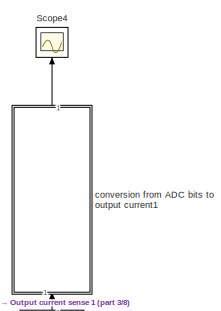
[diagram: root canvas - part 1/8, top left region]
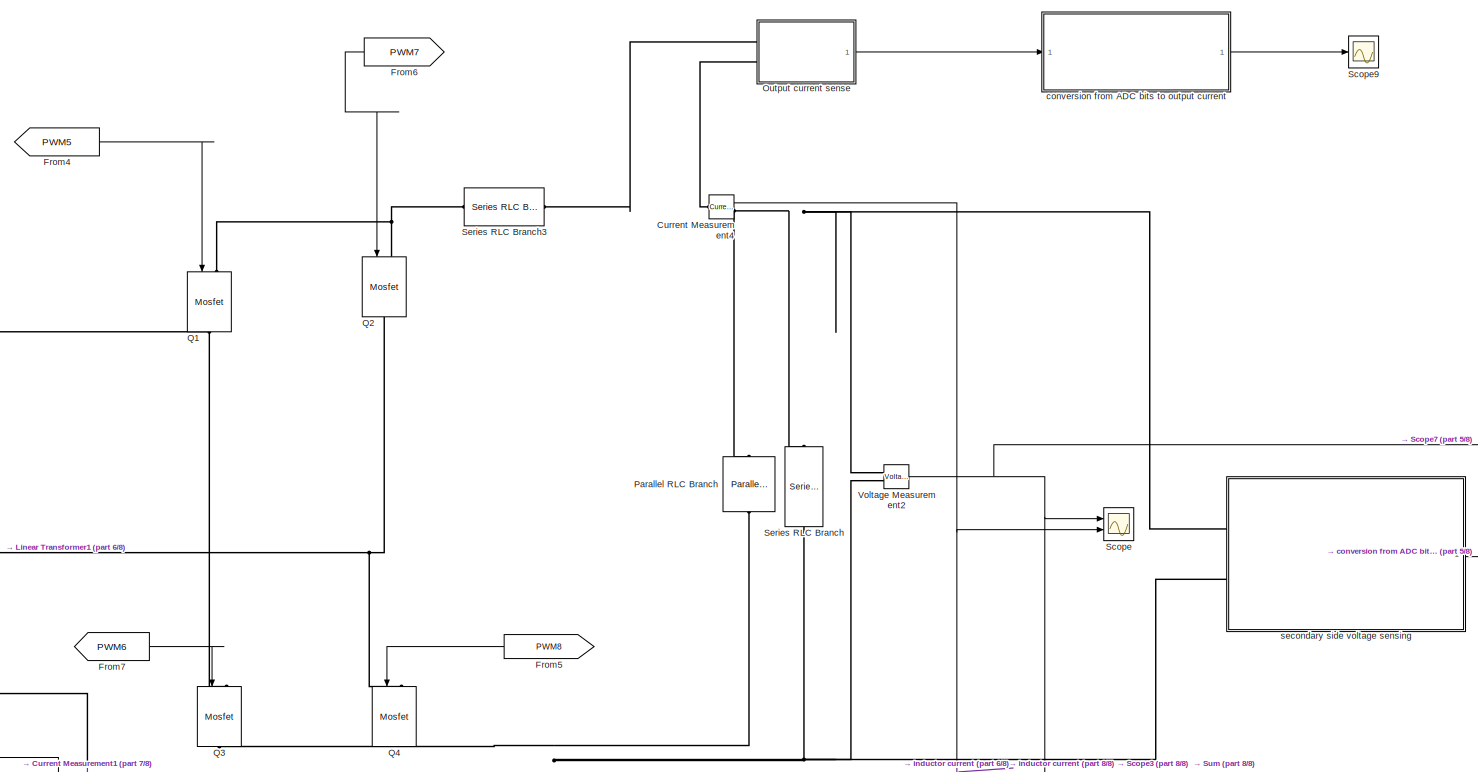
[diagram: root canvas - part 2/8, middle right region]
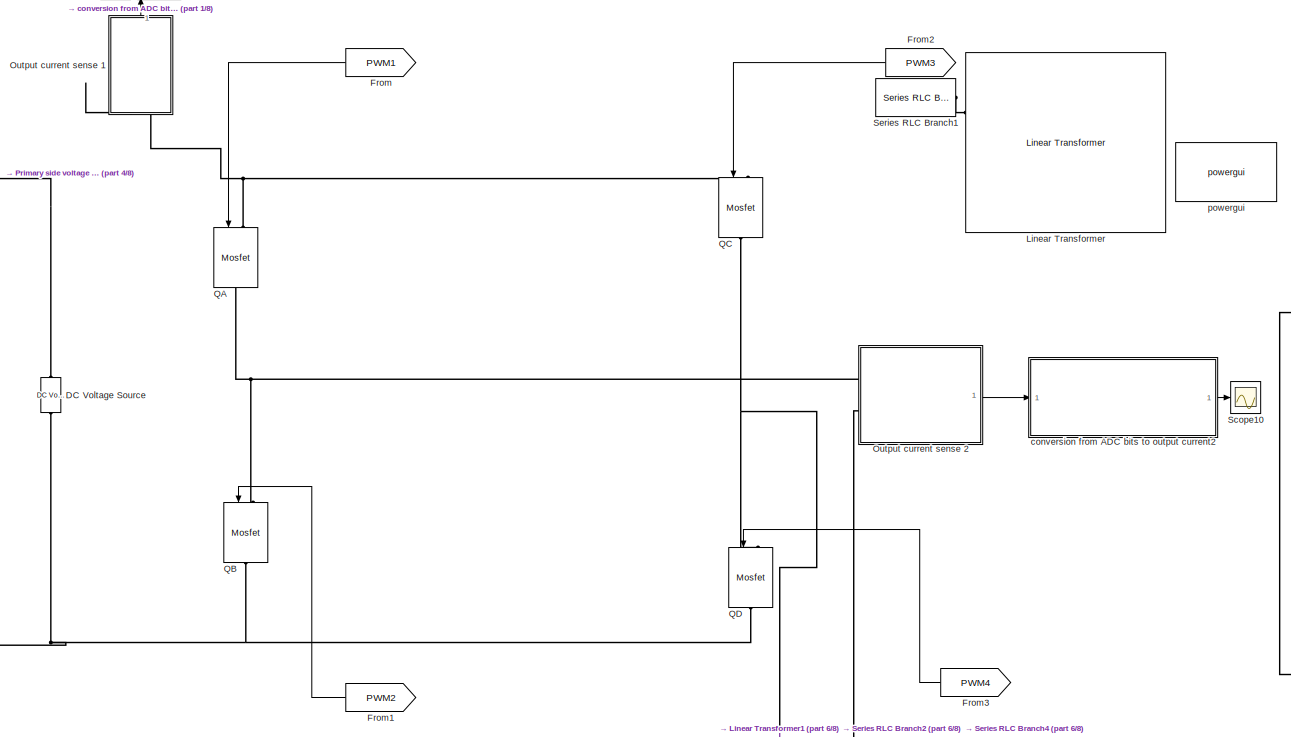
[diagram: root canvas - part 3/8, middle left region]
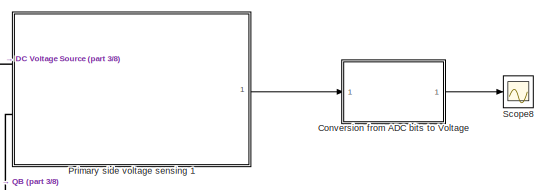
[diagram: root canvas - part 4/8, middle left region]
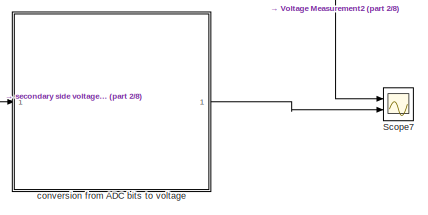
[diagram: root canvas - part 5/8, middle right region]
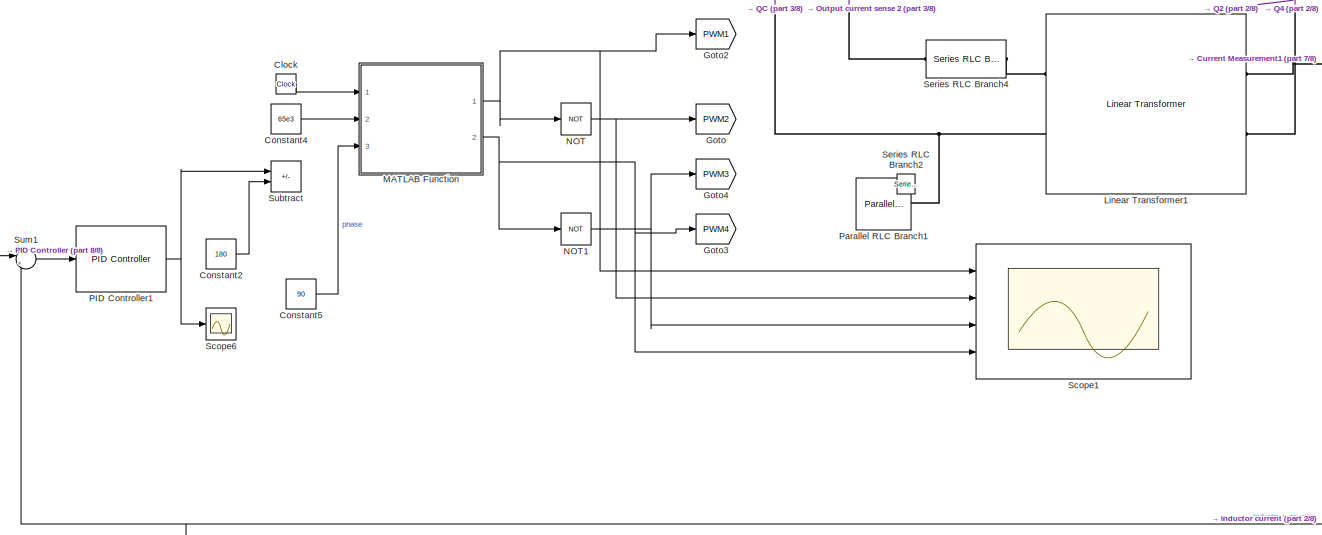
[diagram: root canvas - part 6/8, bottom left region]
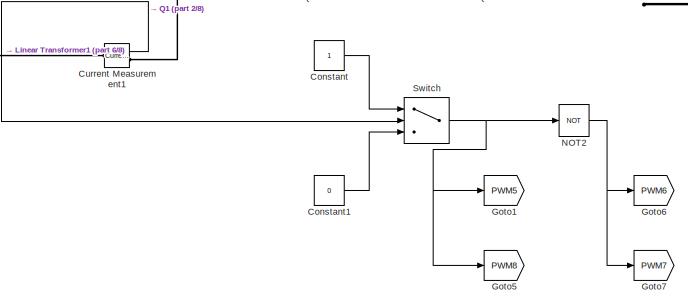
[diagram: root canvas - part 7/8, central region]
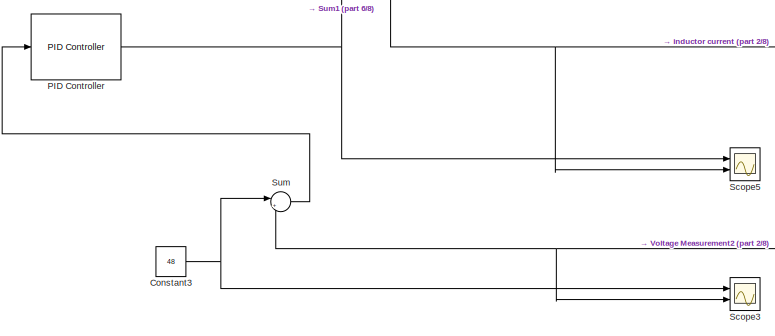
[diagram: root canvas - part 8/8, bottom left region]
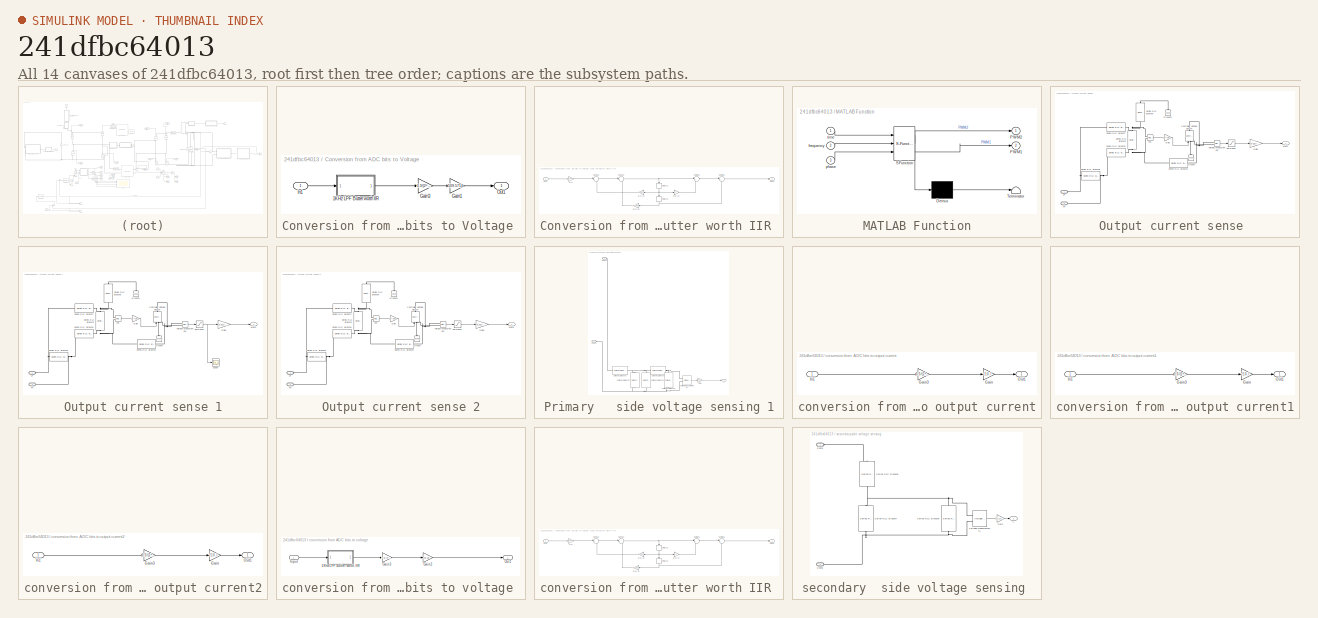
[diagram: thumbnail index - all 14 canvases of the model, root first then tree order]
MODEL slx_241dfbc64013
KIND model
CONFIG AbsTol = auto
CONFIG EnableMultiTasking = off
CONFIG FixedStep = 1.0000e-8
CONFIG MaxStep = auto
CONFIG MinStep = auto
CONFIG RelTol = 1e-3
CONFIG SampleTimeConstraint = Unconstrained
CONFIG SolverName = ode23t
CONFIG StartTime = 0.0
CONFIG StopTime = 0.5
BLOCK [Clock] Clock
BLOCK [Constant] Constant
BLOCK [Constant] Constant1
  Value = 0
BLOCK [Constant] Constant2
  Value = 180
BLOCK [Constant] Constant3
  Value = 48
BLOCK [Constant] Constant4
  Value = 65e3
BLOCK [Constant] Constant5
  SampleTime = 1e-8
  Value = 90
BLOCK [SubSystem] Conversion from ADC bits to Voltage 
  Ports = [1, 1]
  RequestExecContextInheritance = off
BLOCK [SubSystem] Conversion from ADC bits to Voltage /1KHz LPF Butter worth IIR 
  ErrorFcn = dspFilterRealizedInBasicElemsAlgLoopErrFcnCallback
  Ports = [1, 1]
  RequestExecContextInheritance = off
  Tag = FilterWizardSubSystem
  UserDataPersistent = on
BLOCK [Delay] Conversion from ADC bits to Voltage /1KHz LPF Butter worth IIR /Delay11
  DelayLength = 1
  InitialCondition = 0
  InputPortMap = u0
  NameLocation = right
  Ports = [1, 1]
BLOCK [Delay] Conversion from ADC bits to Voltage /1KHz LPF Butter worth IIR /Delay21
  DelayLength = 1
  InitialCondition = 0
  InputPortMap = u0
  NameLocation = right
  Ports = [1, 1]
BLOCK [Inport] Conversion from ADC bits to Voltage /1KHz LPF Butter worth IIR /Input
BLOCK [Outport] Conversion from ADC bits to Voltage /1KHz LPF Butter worth IIR /Output
BLOCK [Sum] Conversion from ADC bits to Voltage /1KHz LPF Butter worth IIR /SumA21
  Inputs = |+-
  OutDataTypeStr = Inherit: Same as first input
  Ports = [2, 1]
  RndMeth = Nearest
  SaturateOnIntegerOverflow = on
BLOCK [Sum] Conversion from ADC bits to Voltage /1KHz LPF Butter worth IIR /SumA31
  Inputs = |+-
  OutDataTypeStr = Inherit: Same as first input
  Ports = [2, 1]
  RndMeth = Nearest
  SaturateOnIntegerOverflow = on
BLOCK [Sum] Conversion from ADC bits to Voltage /1KHz LPF Butter worth IIR /SumB21
  Inputs = |++
  OutDataTypeStr = Inherit: Same as first input
  Ports = [2, 1]
  RndMeth = Nearest
  SaturateOnIntegerOverflow = on
BLOCK [Sum] Conversion from ADC bits to Voltage /1KHz LPF Butter worth IIR /SumB31
  Inputs = |++
  OutDataTypeStr = Inherit: Same as first input
  Ports = [2, 1]
  RndMeth = Nearest
  SaturateOnIntegerOverflow = on
BLOCK [Gain] Conversion from ADC bits to Voltage /1KHz LPF Butter worth IIR /a(2)(1)
  Gain = -1.14298050253990113
  OutDataTypeStr = Inherit: Same as input
  ParamDataTypeStr = double
  RndMeth = Nearest
  SaturateOnIntegerOverflow = on
BLOCK [Gain] Conversion from ADC bits to Voltage /1KHz LPF Butter worth IIR /a(3)(1)
  Gain = 0.412801598096188771
  OutDataTypeStr = Inherit: Same as input
  ParamDataTypeStr = double
  RndMeth = Nearest
  SaturateOnIntegerOverflow = on
BLOCK [Gain] Conversion from ADC bits to Voltage /1KHz LPF Butter worth IIR /b(2)(1)
  Gain = 2
  OutDataTypeStr = Inherit: Same as input
  ParamDataTypeStr = double
  RndMeth = Nearest
  SaturateOnIntegerOverflow = on
BLOCK [Gain] Conversion from ADC bits to Voltage /1KHz LPF Butter worth IIR /s(1)
  Gain = 0.0674552738890718956
  OutDataTypeStr = Inherit: Same as input
  ParamDataTypeStr = double
  RndMeth = Nearest
  SaturateOnIntegerOverflow = on
BLOCK [Gain] Conversion from ADC bits to Voltage /Gain1
  Gain = 509.5714
BLOCK [Gain] Conversion from ADC bits to Voltage /Gain3
  Gain = 3.3/(2^12)
BLOCK [Inport] Conversion from ADC bits to Voltage /In1
BLOCK [Outport] Conversion from ADC bits to Voltage /Out1
BLOCK [Reference] Current Measurement1  REF=spsCurrentMeasurementLib/Current Measurement
  Ports = [0, 1, 0, 0, 0, 1, 1]
  SourceBlock = spsCurrentMeasurementLib/Current Measurement
  SourceProductBaseCode = PS
  SourceType = Current Measurement
  UserDataPersistent = on
BLOCK [Reference] Current Measurement4  REF=spsCurrentMeasurementLib/Current Measurement
  Ports = [0, 1, 0, 0, 0, 1, 1]
  SourceBlock = spsCurrentMeasurementLib/Current Measurement
  SourceProductBaseCode = PS
  SourceType = Current Measurement
  UserDataPersistent = on
BLOCK [Reference] DC Voltage Source  REF=spsDCVoltageSourceLib/DC Voltage Source
  Ports = [0, 0, 0, 0, 0, 1, 1]
  SourceBlock = spsDCVoltageSourceLib/DC Voltage Source
  SourceProductBaseCode = PS
  SourceType = DC Voltage Source
BLOCK [From] From
  GotoTag = PWM1
  NameLocation = top
BLOCK [From] From1
  GotoTag = PWM2
  NameLocation = top
BLOCK [From] From2
  GotoTag = PWM3
  NameLocation = top
BLOCK [From] From3
  GotoTag = PWM4
  NameLocation = top
BLOCK [From] From4
  GotoTag = PWM5
BLOCK [From] From5
  GotoTag = PWM8
  NameLocation = top
BLOCK [From] From6
  GotoTag = PWM7
  NameLocation = top
BLOCK [From] From7
  GotoTag = PWM6
BLOCK [Goto] Goto
  GotoTag = PWM2
BLOCK [Goto] Goto1
  GotoTag = PWM5
BLOCK [Goto] Goto2
  GotoTag = PWM1
BLOCK [Goto] Goto3
  GotoTag = PWM4
BLOCK [Goto] Goto4
  GotoTag = PWM3
BLOCK [Goto] Goto5
  GotoTag = PWM8
BLOCK [Goto] Goto6
  GotoTag = PWM6
BLOCK [Goto] Goto7
  GotoTag = PWM7
BLOCK [Reference] Linear Transformer  REF=spsLinearTransformerLib/Linear Transformer
  Commented = on
  Ports = [0, 0, 0, 0, 0, 2, 2]
  SourceBlock = spsLinearTransformerLib/Linear Transformer
  SourceProductBaseCode = PS
  SourceType = Linear Transformer
BLOCK [Reference] Linear Transformer1  REF=spsLinearTransformerLib/Linear Transformer
  Ports = [0, 0, 0, 0, 0, 2, 2]
  SourceBlock = spsLinearTransformerLib/Linear Transformer
  SourceProductBaseCode = PS
  SourceType = Linear Transformer
BLOCK [SubSystem] MATLAB Function
  ErrorFcn = Stateflow.Translate.translate
  PermitHierarchicalResolution = ExplicitOnly
  Ports = [3, 2]
  RequestExecContextInheritance = off
  SFBlockType = MATLAB Function
  TreatAsAtomicUnit = on
BLOCK [Demux] MATLAB Function/ Demux 
  Outputs = 1
  Ports = [1, 1]
BLOCK [S-Function] MATLAB Function/ SFunction 
  EnableBusSupport = on
  FunctionName = sf_sfun
  PortCounts = [3 3]
  Ports = [3, 3]
  SFcnIsStateOwnerBlock = off
  SFunctionDeploymentMode = off
  Tag = Stateflow S-Function 2
BLOCK [Terminator] MATLAB Function/ Terminator 
BLOCK [Outport] MATLAB Function/PWM1
  Port = 2
BLOCK [Outport] MATLAB Function/PWM2
BLOCK [Inport] MATLAB Function/frequency
  Port = 2
BLOCK [Inport] MATLAB Function/phase
  Port = 3
BLOCK [Inport] MATLAB Function/time
BLOCK [Logic] NOT
  AllPortsSameDT = off
  IconShape = distinctive
  Operator = NOT
  OutDataTypeStr = boolean
  Ports = [1, 1]
BLOCK [Logic] NOT1
  AllPortsSameDT = off
  IconShape = distinctive
  Operator = NOT
  OutDataTypeStr = boolean
  Ports = [1, 1]
BLOCK [Logic] NOT2
  AllPortsSameDT = off
  IconShape = distinctive
  Operator = NOT
  OutDataTypeStr = boolean
  Ports = [1, 1]
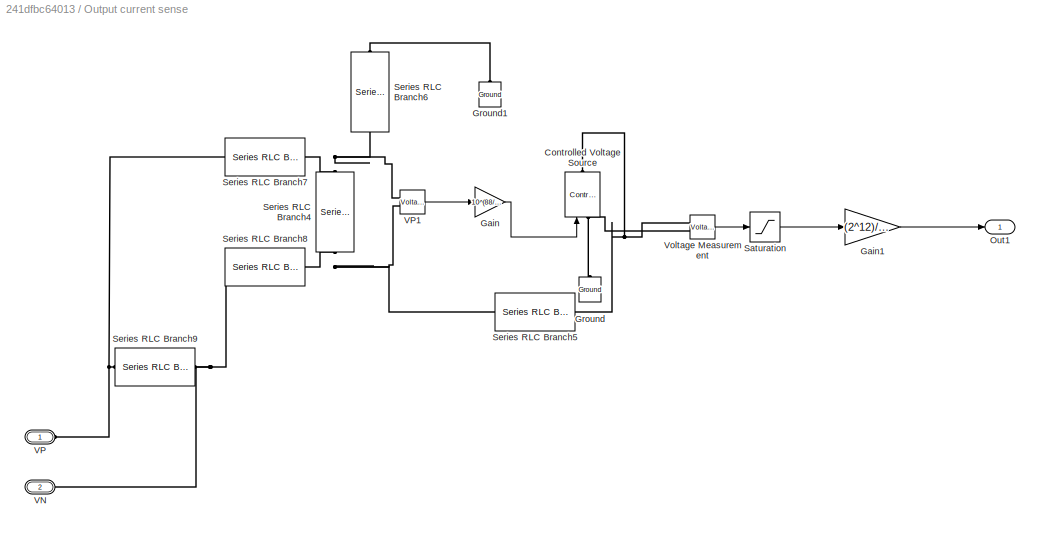
BLOCK [SubSystem] Output current sense 
  Ports = [0, 1, 0, 0, 0, 2]
  RequestExecContextInheritance = off
BLOCK [Reference] Output current sense /Controlled Voltage Source  REF=spsControlledVoltageSourceLib/Controlled Voltage Source
  Ports = [1, 0, 0, 0, 0, 1, 1]
  SourceBlock = spsControlledVoltageSourceLib/Controlled Voltage Source
  SourceProductBaseCode = PS
  SourceType = Controlled Voltage Source
BLOCK [Gain] Output current sense /Gain
  Gain = 10^(88/20)
BLOCK [Gain] Output current sense /Gain1
  Gain = (2^12)/3.3
BLOCK [Reference] Output current sense /Ground  REF=spsGroundLib/Ground
  NameLocation = right
  Ports = [0, 0, 0, 0, 0, 1]
  SourceBlock = spsGroundLib/Ground
  SourceProductBaseCode = PS
  SourceType = Ground
BLOCK [Reference] Output current sense /Ground1  REF=spsGroundLib/Ground
  NameLocation = right
  Ports = [0, 0, 0, 0, 0, 1]
  SourceBlock = spsGroundLib/Ground
  SourceProductBaseCode = PS
  SourceType = Ground
BLOCK [Outport] Output current sense /Out1
BLOCK [Saturate] Output current sense /Saturation
  LowerLimit = 0
  UpperLimit = 3.3
BLOCK [Reference] Output current sense /Series RLC Branch4  REF=spsSeriesRLCBranchLib/Series RLC Branch
  NameLocation = left
  Ports = [0, 0, 0, 0, 0, 1, 1]
  SourceBlock = spsSeriesRLCBranchLib/Series RLC Branch
  SourceProductBaseCode = PS
  SourceType = Series RLC Branch
BLOCK [Reference] Output current sense /Series RLC Branch5  REF=spsSeriesRLCBranchLib/Series RLC Branch
  NameLocation = top
  Ports = [0, 0, 0, 0, 0, 1, 1]
  SourceBlock = spsSeriesRLCBranchLib/Series RLC Branch
  SourceProductBaseCode = PS
  SourceType = Series RLC Branch
BLOCK [Reference] Output current sense /Series RLC Branch6  REF=spsSeriesRLCBranchLib/Series RLC Branch
  NameLocation = right
  Ports = [0, 0, 0, 0, 0, 1, 1]
  SourceBlock = spsSeriesRLCBranchLib/Series RLC Branch
  SourceProductBaseCode = PS
  SourceType = Series RLC Branch
BLOCK [Reference] Output current sense /Series RLC Branch7  REF=spsSeriesRLCBranchLib/Series RLC Branch
  NameLocation = top
  Ports = [0, 0, 0, 0, 0, 1, 1]
  SourceBlock = spsSeriesRLCBranchLib/Series RLC Branch
  SourceProductBaseCode = PS
  SourceType = Series RLC Branch
BLOCK [Reference] Output current sense /Series RLC Branch8  REF=spsSeriesRLCBranchLib/Series RLC Branch
  NameLocation = top
  Ports = [0, 0, 0, 0, 0, 1, 1]
  SourceBlock = spsSeriesRLCBranchLib/Series RLC Branch
  SourceProductBaseCode = PS
  SourceType = Series RLC Branch
BLOCK [Reference] Output current sense /Series RLC Branch9  REF=spsSeriesRLCBranchLib/Series RLC Branch
  Ports = [0, 0, 0, 0, 0, 1, 1]
  SourceBlock = spsSeriesRLCBranchLib/Series RLC Branch
  SourceProductBaseCode = PS
  SourceType = Series RLC Branch
BLOCK [PMIOPort] Output current sense /VN
  NameLocation = top
  Port = 2
  Side = Left
BLOCK [PMIOPort] Output current sense /VP
  Side = Left
BLOCK [Reference] Output current sense /VP1  REF=spsVoltageMeasurementLib/Voltage Measurement
  Ports = [0, 1, 0, 0, 0, 2]
  SourceBlock = spsVoltageMeasurementLib/Voltage Measurement
  SourceProductBaseCode = PS
  SourceType = Voltage Measurement
  UserDataPersistent = on
BLOCK [Reference] Output current sense /Voltage Measurement  REF=spsVoltageMeasurementLib/Voltage Measurement
  Ports = [0, 1, 0, 0, 0, 2]
  SourceBlock = spsVoltageMeasurementLib/Voltage Measurement
  SourceProductBaseCode = PS
  SourceType = Voltage Measurement
  UserDataPersistent = on
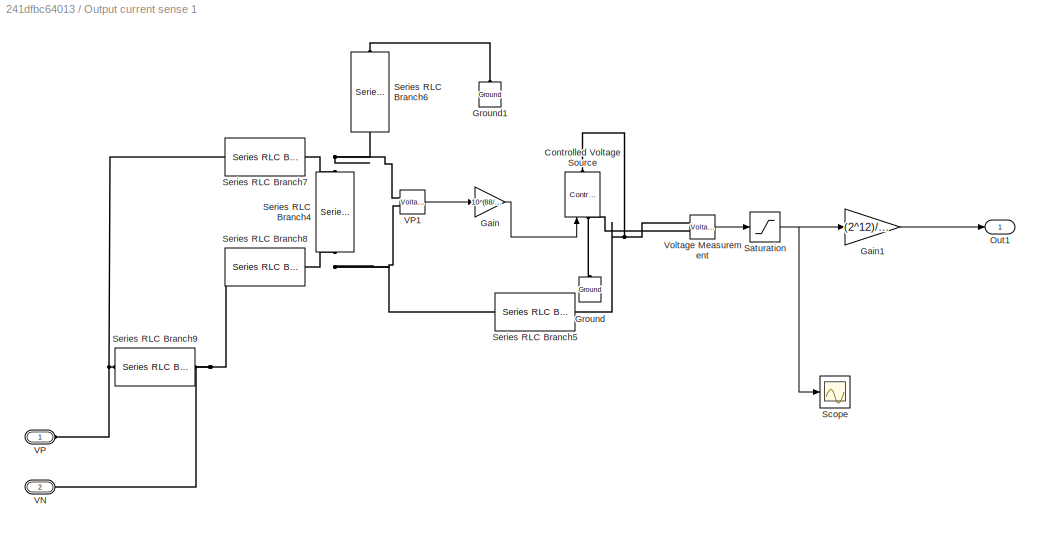
BLOCK [SubSystem] Output current sense 1
  NameLocation = right
  Ports = [0, 1, 0, 0, 0, 2]
  RequestExecContextInheritance = off
BLOCK [Reference] Output current sense 1/Controlled Voltage Source  REF=spsControlledVoltageSourceLib/Controlled Voltage Source
  Ports = [1, 0, 0, 0, 0, 1, 1]
  SourceBlock = spsControlledVoltageSourceLib/Controlled Voltage Source
  SourceProductBaseCode = PS
  SourceType = Controlled Voltage Source
BLOCK [Gain] Output current sense 1/Gain
  Gain = 10^(88/20)
BLOCK [Gain] Output current sense 1/Gain1
  Gain = (2^12)/3.3
BLOCK [Reference] Output current sense 1/Ground  REF=spsGroundLib/Ground
  NameLocation = right
  Ports = [0, 0, 0, 0, 0, 1]
  SourceBlock = spsGroundLib/Ground
  SourceProductBaseCode = PS
  SourceType = Ground
BLOCK [Reference] Output current sense 1/Ground1  REF=spsGroundLib/Ground
  NameLocation = right
  Ports = [0, 0, 0, 0, 0, 1]
  SourceBlock = spsGroundLib/Ground
  SourceProductBaseCode = PS
  SourceType = Ground
BLOCK [Outport] Output current sense 1/Out1
BLOCK [Saturate] Output current sense 1/Saturation
  LowerLimit = 0
  UpperLimit = 3.3
BLOCK [Scope] Output current sense 1/Scope
  Floating = off
  NumInputPorts = 1
  Ports = [1]
  ScopeSpecificationString = Simulink.scopes.TimeScopeBlockCfg('CurrentConfiguration', extmgr.ConfigurationSet(extmgr.Configuration('Core','General UI',true),extmgr.Configuration('Core','Source UI',true),extmgr.Configuration('Sources','WiredSimulink',true,'DataLoggingVariableName','ScopeData1'),extmgr.Configuration('Visuals','Time Domain',true,'SerializedDisplays',{struct('MinYLimReal','-0.01341','MaxYLimReal','0.12069','YLab...<+1420ch>
BLOCK [Reference] Output current sense 1/Series RLC Branch4  REF=spsSeriesRLCBranchLib/Series RLC Branch
  NameLocation = left
  Ports = [0, 0, 0, 0, 0, 1, 1]
  SourceBlock = spsSeriesRLCBranchLib/Series RLC Branch
  SourceProductBaseCode = PS
  SourceType = Series RLC Branch
BLOCK [Reference] Output current sense 1/Series RLC Branch5  REF=spsSeriesRLCBranchLib/Series RLC Branch
  NameLocation = top
  Ports = [0, 0, 0, 0, 0, 1, 1]
  SourceBlock = spsSeriesRLCBranchLib/Series RLC Branch
  SourceProductBaseCode = PS
  SourceType = Series RLC Branch
BLOCK [Reference] Output current sense 1/Series RLC Branch6  REF=spsSeriesRLCBranchLib/Series RLC Branch
  NameLocation = right
  Ports = [0, 0, 0, 0, 0, 1, 1]
  SourceBlock = spsSeriesRLCBranchLib/Series RLC Branch
  SourceProductBaseCode = PS
  SourceType = Series RLC Branch
BLOCK [Reference] Output current sense 1/Series RLC Branch7  REF=spsSeriesRLCBranchLib/Series RLC Branch
  NameLocation = top
  Ports = [0, 0, 0, 0, 0, 1, 1]
  SourceBlock = spsSeriesRLCBranchLib/Series RLC Branch
  SourceProductBaseCode = PS
  SourceType = Series RLC Branch
BLOCK [Reference] Output current sense 1/Series RLC Branch8  REF=spsSeriesRLCBranchLib/Series RLC Branch
  NameLocation = top
  Ports = [0, 0, 0, 0, 0, 1, 1]
  SourceBlock = spsSeriesRLCBranchLib/Series RLC Branch
  SourceProductBaseCode = PS
  SourceType = Series RLC Branch
BLOCK [Reference] Output current sense 1/Series RLC Branch9  REF=spsSeriesRLCBranchLib/Series RLC Branch
  Ports = [0, 0, 0, 0, 0, 1, 1]
  SourceBlock = spsSeriesRLCBranchLib/Series RLC Branch
  SourceProductBaseCode = PS
  SourceType = Series RLC Branch
BLOCK [PMIOPort] Output current sense 1/VN
  NameLocation = top
  Port = 2
  Side = Left
BLOCK [PMIOPort] Output current sense 1/VP
  Side = Left
BLOCK [Reference] Output current sense 1/VP1  REF=spsVoltageMeasurementLib/Voltage Measurement
  Ports = [0, 1, 0, 0, 0, 2]
  SourceBlock = spsVoltageMeasurementLib/Voltage Measurement
  SourceProductBaseCode = PS
  SourceType = Voltage Measurement
  UserDataPersistent = on
BLOCK [Reference] Output current sense 1/Voltage Measurement  REF=spsVoltageMeasurementLib/Voltage Measurement
  Ports = [0, 1, 0, 0, 0, 2]
  SourceBlock = spsVoltageMeasurementLib/Voltage Measurement
  SourceProductBaseCode = PS
  SourceType = Voltage Measurement
  UserDataPersistent = on
BLOCK [SubSystem] Output current sense 2
  Ports = [0, 1, 0, 0, 0, 2]
  RequestExecContextInheritance = off
BLOCK [Reference] Output current sense 2/Controlled Voltage Source  REF=spsControlledVoltageSourceLib/Controlled Voltage Source
  Ports = [1, 0, 0, 0, 0, 1, 1]
  SourceBlock = spsControlledVoltageSourceLib/Controlled Voltage Source
  SourceProductBaseCode = PS
  SourceType = Controlled Voltage Source
BLOCK [Gain] Output current sense 2/Gain
  Gain = 10^(88/20)
BLOCK [Gain] Output current sense 2/Gain1
  Gain = (2^12)/3.3
BLOCK [Reference] Output current sense 2/Ground  REF=spsGroundLib/Ground
  NameLocation = right
  Ports = [0, 0, 0, 0, 0, 1]
  SourceBlock = spsGroundLib/Ground
  SourceProductBaseCode = PS
  SourceType = Ground
BLOCK [Reference] Output current sense 2/Ground1  REF=spsGroundLib/Ground
  NameLocation = right
  Ports = [0, 0, 0, 0, 0, 1]
  SourceBlock = spsGroundLib/Ground
  SourceProductBaseCode = PS
  SourceType = Ground
BLOCK [Outport] Output current sense 2/Out1
BLOCK [Saturate] Output current sense 2/Saturation
  LowerLimit = 0
  UpperLimit = 3.3
BLOCK [Reference] Output current sense 2/Series RLC Branch4  REF=spsSeriesRLCBranchLib/Series RLC Branch
  NameLocation = left
  Ports = [0, 0, 0, 0, 0, 1, 1]
  SourceBlock = spsSeriesRLCBranchLib/Series RLC Branch
  SourceProductBaseCode = PS
  SourceType = Series RLC Branch
BLOCK [Reference] Output current sense 2/Series RLC Branch5  REF=spsSeriesRLCBranchLib/Series RLC Branch
  NameLocation = top
  Ports = [0, 0, 0, 0, 0, 1, 1]
  SourceBlock = spsSeriesRLCBranchLib/Series RLC Branch
  SourceProductBaseCode = PS
  SourceType = Series RLC Branch
BLOCK [Reference] Output current sense 2/Series RLC Branch6  REF=spsSeriesRLCBranchLib/Series RLC Branch
  NameLocation = right
  Ports = [0, 0, 0, 0, 0, 1, 1]
  SourceBlock = spsSeriesRLCBranchLib/Series RLC Branch
  SourceProductBaseCode = PS
  SourceType = Series RLC Branch
BLOCK [Reference] Output current sense 2/Series RLC Branch7  REF=spsSeriesRLCBranchLib/Series RLC Branch
  NameLocation = top
  Ports = [0, 0, 0, 0, 0, 1, 1]
  SourceBlock = spsSeriesRLCBranchLib/Series RLC Branch
  SourceProductBaseCode = PS
  SourceType = Series RLC Branch
BLOCK [Reference] Output current sense 2/Series RLC Branch8  REF=spsSeriesRLCBranchLib/Series RLC Branch
  NameLocation = top
  Ports = [0, 0, 0, 0, 0, 1, 1]
  SourceBlock = spsSeriesRLCBranchLib/Series RLC Branch
  SourceProductBaseCode = PS
  SourceType = Series RLC Branch
BLOCK [Reference] Output current sense 2/Series RLC Branch9  REF=spsSeriesRLCBranchLib/Series RLC Branch
  Ports = [0, 0, 0, 0, 0, 1, 1]
  SourceBlock = spsSeriesRLCBranchLib/Series RLC Branch
  SourceProductBaseCode = PS
  SourceType = Series RLC Branch
BLOCK [PMIOPort] Output current sense 2/VN
  NameLocation = top
  Port = 2
  Side = Left
BLOCK [PMIOPort] Output current sense 2/VP
  Side = Left
BLOCK [Reference] Output current sense 2/VP1  REF=spsVoltageMeasurementLib/Voltage Measurement
  Ports = [0, 1, 0, 0, 0, 2]
  SourceBlock = spsVoltageMeasurementLib/Voltage Measurement
  SourceProductBaseCode = PS
  SourceType = Voltage Measurement
  UserDataPersistent = on
BLOCK [Reference] Output current sense 2/Voltage Measurement  REF=spsVoltageMeasurementLib/Voltage Measurement
  Ports = [0, 1, 0, 0, 0, 2]
  SourceBlock = spsVoltageMeasurementLib/Voltage Measurement
  SourceProductBaseCode = PS
  SourceType = Voltage Measurement
  UserDataPersistent = on
BLOCK [Reference] PID Controller  REF=pid_lib/PID Controller
  Ports = [1, 1]
  SourceBlock = pid_lib/PID Controller
  SourceProductBaseCode = SL
  SourceType = PID 1dof
BLOCK [Reference] PID Controller1  REF=pid_lib/PID Controller
  Ports = [1, 1]
  SourceBlock = pid_lib/PID Controller
  SourceProductBaseCode = SL
  SourceType = PID 1dof
BLOCK [Reference] Parallel RLC Branch  REF=spsParallelRLCBranchLib/Parallel RLC Branch
  AttributesFormatString = \n
  NameLocation = left
  Ports = [0, 0, 0, 0, 0, 1, 1]
  SourceBlock = spsParallelRLCBranchLib/Parallel RLC Branch
  SourceProductBaseCode = PS
  SourceType = Parallel RLC Branch
BLOCK [Reference] Parallel RLC Branch1  REF=spsParallelRLCBranchLib/Parallel RLC Branch
  AttributesFormatString = \n
  Commented = on
  Ports = [0, 0, 0, 0, 0, 1, 1]
  SourceBlock = spsParallelRLCBranchLib/Parallel RLC Branch
  SourceProductBaseCode = PS
  SourceType = Parallel RLC Branch
BLOCK [SubSystem] Primary   side voltage sensing 1
  Ports = [0, 1, 0, 0, 0, 2]
  RequestExecContextInheritance = off
BLOCK [PMIOPort] Primary   side voltage sensing 1/Conn1
  Side = Left
BLOCK [PMIOPort] Primary   side voltage sensing 1/Conn2
  Port = 2
  Side = Left
BLOCK [Gain] Primary   side voltage sensing 1/Gain
  Gain = (2^12)/3.3
BLOCK [Reference] Primary   side voltage sensing 1/Series RLC Branch1  REF=spsSeriesRLCBranchLib/Series RLC Branch
  NameLocation = left
  Ports = [0, 0, 0, 0, 0, 1, 1]
  SourceBlock = spsSeriesRLCBranchLib/Series RLC Branch
  SourceProductBaseCode = PS
  SourceType = Series RLC Branch
BLOCK [Reference] Primary   side voltage sensing 1/Series RLC Branch6  REF=spsSeriesRLCBranchLib/Series RLC Branch
  Ports = [0, 0, 0, 0, 0, 1, 1]
  SourceBlock = spsSeriesRLCBranchLib/Series RLC Branch
  SourceProductBaseCode = PS
  SourceType = Series RLC Branch
BLOCK [Reference] Primary   side voltage sensing 1/Series RLC Branch7  REF=spsSeriesRLCBranchLib/Series RLC Branch
  NameLocation = left
  Ports = [0, 0, 0, 0, 0, 1, 1]
  SourceBlock = spsSeriesRLCBranchLib/Series RLC Branch
  SourceProductBaseCode = PS
  SourceType = Series RLC Branch
BLOCK [Reference] Primary   side voltage sensing 1/Series RLC Branch8  REF=spsSeriesRLCBranchLib/Series RLC Branch
  NameLocation = top
  Ports = [0, 0, 0, 0, 0, 1, 1]
  SourceBlock = spsSeriesRLCBranchLib/Series RLC Branch
  SourceProductBaseCode = PS
  SourceType = Series RLC Branch
BLOCK [Reference] Primary   side voltage sensing 1/Series RLC Branch9  REF=spsSeriesRLCBranchLib/Series RLC Branch
  NameLocation = left
  Ports = [0, 0, 0, 0, 0, 1, 1]
  SourceBlock = spsSeriesRLCBranchLib/Series RLC Branch
  SourceProductBaseCode = PS
  SourceType = Series RLC Branch
BLOCK [Reference] Primary   side voltage sensing 1/Voltage Measurement2  REF=spsVoltageMeasurementLib/Voltage Measurement
  Ports = [0, 1, 0, 0, 0, 2]
  SourceBlock = spsVoltageMeasurementLib/Voltage Measurement
  SourceProductBaseCode = PS
  SourceType = Voltage Measurement
  UserDataPersistent = on
BLOCK [Outport] Primary   side voltage sensing 1/v
BLOCK [Reference] Q1  REF=spsMosfetLib/Mosfet
  NameLocation = left
  Ports = [1, 0, 0, 0, 0, 1, 1]
  SourceBlock = spsMosfetLib/Mosfet
  SourceProductBaseCode = PS
  SourceType = Mosfet
BLOCK [Reference] Q2  REF=spsMosfetLib/Mosfet
  NameLocation = left
  Ports = [1, 0, 0, 0, 0, 1, 1]
  SourceBlock = spsMosfetLib/Mosfet
  SourceProductBaseCode = PS
  SourceType = Mosfet
BLOCK [Reference] Q3  REF=spsMosfetLib/Mosfet
  NameLocation = left
  Ports = [1, 0, 0, 0, 0, 1, 1]
  SourceBlock = spsMosfetLib/Mosfet
  SourceProductBaseCode = PS
  SourceType = Mosfet
BLOCK [Reference] Q4  REF=spsMosfetLib/Mosfet
  NameLocation = left
  Ports = [1, 0, 0, 0, 0, 1, 1]
  SourceBlock = spsMosfetLib/Mosfet
  SourceProductBaseCode = PS
  SourceType = Mosfet
BLOCK [Reference] QA  REF=spsMosfetLib/Mosfet
  NameLocation = left
  Ports = [1, 0, 0, 0, 0, 1, 1]
  SourceBlock = spsMosfetLib/Mosfet
  SourceProductBaseCode = PS
  SourceType = Mosfet
BLOCK [Reference] QB  REF=spsMosfetLib/Mosfet
  NameLocation = left
  Ports = [1, 0, 0, 0, 0, 1, 1]
  SourceBlock = spsMosfetLib/Mosfet
  SourceProductBaseCode = PS
  SourceType = Mosfet
BLOCK [Reference] QC  REF=spsMosfetLib/Mosfet
  NameLocation = left
  Ports = [1, 0, 0, 0, 0, 1, 1]
  SourceBlock = spsMosfetLib/Mosfet
  SourceProductBaseCode = PS
  SourceType = Mosfet
BLOCK [Reference] QD  REF=spsMosfetLib/Mosfet
  NameLocation = left
  Ports = [1, 0, 0, 0, 0, 1, 1]
  SourceBlock = spsMosfetLib/Mosfet
  SourceProductBaseCode = PS
  SourceType = Mosfet
BLOCK [Scope] Scope
  Floating = off
  NumInputPorts = 2
  Ports = [2]
  ScopeSpecificationString = Simulink.scopes.TimeScopeBlockCfg('CurrentConfiguration', extmgr.ConfigurationSet(extmgr.Configuration('Core','General UI',true),extmgr.Configuration('Core','Source UI',true),extmgr.Configuration('Sources','WiredSimulink',true,'DataLoggingVariableName','ScopeData2'),extmgr.Configuration('Visuals','Time Domain',true,'SerializedDisplays',{struct('MinYLimReal','-5.95874','MaxYLimReal','53.6287','YLab...<+2470ch>
BLOCK [Scope] Scope1
  Floating = off
  NumInputPorts = 4
  Ports = [4]
  ScopeSpecificationString = Simulink.scopes.TimeScopeBlockCfg('CurrentConfiguration', extmgr.ConfigurationSet(extmgr.Configuration('Core','General UI',true),extmgr.Configuration('Core','Source UI',true),extmgr.Configuration('Sources','WiredSimulink',true,'DataLoggingVariableName','ScopeData1'),extmgr.Configuration('Visuals','Time Domain',true,'SerializedDisplays',{struct('MinYLimReal','-0.125','MaxYLimReal','1.07134','YLabel...<+3756ch>
BLOCK [Scope] Scope10
  Floating = off
  NumInputPorts = 1
  Ports = [1]
  ScopeSpecificationString = Simulink.scopes.TimeScopeBlockCfg('CurrentConfiguration', extmgr.ConfigurationSet(extmgr.Configuration('Core','General UI',true),extmgr.Configuration('Core','Source UI',true),extmgr.Configuration('Sources','WiredSimulink',true,'DataLoggingVariableName','ScopeData3'),extmgr.Configuration('Visuals','Time Domain',true,'SerializedDisplays',{struct('MinYLimReal','-14.64986','MaxYLimReal','131.84875','Y...<+1460ch>
BLOCK [Scope] Scope3
  Floating = off
  NumInputPorts = 2
  Ports = [2]
  ScopeSpecificationString = Simulink.scopes.TimeScopeBlockCfg('CurrentConfiguration', extmgr.ConfigurationSet(extmgr.Configuration('Core','General UI',true),extmgr.Configuration('Core','Source UI',true),extmgr.Configuration('Sources','WiredSimulink',true,'DataLoggingVariableName','ScopeData1'),extmgr.Configuration('Visuals','Time Domain',true,'SerializedDisplays',{struct('MinYLimReal','-6.00138','MaxYLimReal','54.01246','YLa...<+1472ch>
BLOCK [Scope] Scope4
  Floating = off
  NameLocation = right
  NumInputPorts = 1
  Ports = [1]
  ScopeSpecificationString = Simulink.scopes.TimeScopeBlockCfg('CurrentConfiguration', extmgr.ConfigurationSet(extmgr.Configuration('Core','General UI',true),extmgr.Configuration('Core','Source UI',true),extmgr.Configuration('Sources','WiredSimulink',true,'DataLoggingVariableName','ScopeData1'),extmgr.Configuration('Visuals','Time Domain',true,'SerializedDisplays',{struct('MinYLimReal','-2.81764','MaxYLimReal','25.3588','YLab...<+1402ch>
BLOCK [Scope] Scope5
  Floating = off
  NumInputPorts = 2
  Ports = [2]
  ScopeSpecificationString = Simulink.scopes.TimeScopeBlockCfg('CurrentConfiguration', extmgr.ConfigurationSet(extmgr.Configuration('Core','General UI',true),extmgr.Configuration('Core','Source UI',true),extmgr.Configuration('Sources','WiredSimulink',true,'DataLoggingVariableName','ScopeData2'),extmgr.Configuration('Visuals','Time Domain',true,'SerializedDisplays',{struct('MinYLimReal','-12.4512','MaxYLimReal','112.04634','YL...<+1538ch>
BLOCK [Scope] Scope6
  Floating = off
  NumInputPorts = 1
  Ports = [1]
  ScopeSpecificationString = Simulink.scopes.TimeScopeBlockCfg('CurrentConfiguration', extmgr.ConfigurationSet(extmgr.Configuration('Core','General UI',true),extmgr.Configuration('Core','Source UI',true),extmgr.Configuration('Sources','WiredSimulink',true,'DataLoggingVariableName','ScopeData1'),extmgr.Configuration('Visuals','Time Domain',true,'SerializedDisplays',{struct('MinYLimReal','-0.64744','MaxYLimReal','5.82695','YLab...<+1374ch>
BLOCK [Scope] Scope7
  Floating = off
  NumInputPorts = 2
  Ports = [2]
  ScopeSpecificationString = Simulink.scopes.TimeScopeBlockCfg('CurrentConfiguration', extmgr.ConfigurationSet(extmgr.Configuration('Core','General UI',true),extmgr.Configuration('Core','Source UI',true),extmgr.Configuration('Sources','WiredSimulink',true,'DataLoggingVariableName','ScopeData1'),extmgr.Configuration('Visuals','Time Domain',true,'SerializedDisplays',{struct('MinYLimReal','-3.31056','MaxYLimReal','29.79503','YLa...<+1465ch>
BLOCK [Scope] Scope8
  Floating = off
  NumInputPorts = 1
  Ports = [1]
  ScopeSpecificationString = Simulink.scopes.TimeScopeBlockCfg('CurrentConfiguration', extmgr.ConfigurationSet(extmgr.Configuration('Core','General UI',true),extmgr.Configuration('Core','Source UI',true),extmgr.Configuration('Sources','WiredSimulink',true,'DataLoggingVariableName','ScopeData2'),extmgr.Configuration('Visuals','Time Domain',true,'SerializedDisplays',{struct('MinYLimReal','-44.26554','MaxYLimReal','938.03205','Y...<+1485ch>
BLOCK [Scope] Scope9
  Floating = off
  NumInputPorts = 1
  Ports = [1]
  ScopeSpecificationString = Simulink.scopes.TimeScopeBlockCfg('CurrentConfiguration', extmgr.ConfigurationSet(extmgr.Configuration('Core','General UI',true),extmgr.Configuration('Core','Source UI',true),extmgr.Configuration('Sources','WiredSimulink',true,'DataLoggingVariableName','ScopeData1'),extmgr.Configuration('Visuals','Time Domain',true,'SerializedDisplays',{struct('MinYLimReal','-13.87651','MaxYLimReal','124.88857','Y...<+1783ch>
BLOCK [Reference] Series RLC Branch  REF=spsSeriesRLCBranchLib/Series RLC Branch
  NameLocation = left
  Ports = [0, 0, 0, 0, 0, 1, 1]
  SourceBlock = spsSeriesRLCBranchLib/Series RLC Branch
  SourceProductBaseCode = PS
  SourceType = Series RLC Branch
BLOCK [Reference] Series RLC Branch1  REF=spsSeriesRLCBranchLib/Series RLC Branch
  Commented = on
  Ports = [0, 0, 0, 0, 0, 1, 1]
  SourceBlock = spsSeriesRLCBranchLib/Series RLC Branch
  SourceProductBaseCode = PS
  SourceType = Series RLC Branch
BLOCK [Reference] Series RLC Branch2  REF=spsSeriesRLCBranchLib/Series RLC Branch
  Commented = on
  NameLocation = left
  Ports = [0, 0, 0, 0, 0, 1, 1]
  SourceBlock = spsSeriesRLCBranchLib/Series RLC Branch
  SourceProductBaseCode = PS
  SourceType = Series RLC Branch
BLOCK [Reference] Series RLC Branch3  REF=spsSeriesRLCBranchLib/Series RLC Branch
  Ports = [0, 0, 0, 0, 0, 1, 1]
  SourceBlock = spsSeriesRLCBranchLib/Series RLC Branch
  SourceProductBaseCode = PS
  SourceType = Series RLC Branch
BLOCK [Reference] Series RLC Branch4  REF=spsSeriesRLCBranchLib/Series RLC Branch
  Ports = [0, 0, 0, 0, 0, 1, 1]
  SourceBlock = spsSeriesRLCBranchLib/Series RLC Branch
  SourceProductBaseCode = PS
  SourceType = Series RLC Branch
BLOCK [Sum] Subtract
  IconShape = rectangular
  Inputs = -+
  Ports = [2, 1]
BLOCK [Sum] Sum
  Inputs = |+-
  Ports = [2, 1]
BLOCK [Sum] Sum1
  Inputs = |+-
  Ports = [2, 1]
BLOCK [Switch] Switch
  Criteria = u2 > Threshold
  InputSameDT = off
  SaturateOnIntegerOverflow = off
BLOCK [Reference] Voltage Measurement2  REF=spsVoltageMeasurementLib/Voltage Measurement
  Ports = [0, 1, 0, 0, 0, 2]
  SourceBlock = spsVoltageMeasurementLib/Voltage Measurement
  SourceProductBaseCode = PS
  SourceType = Voltage Measurement
  UserDataPersistent = on
BLOCK [SubSystem] conversion from ADC bits to output current
  Ports = [1, 1]
  RequestExecContextInheritance = off
BLOCK [Gain] conversion from ADC bits to output current/Gain
  Gain = 210.7
BLOCK [Gain] conversion from ADC bits to output current/Gain3
  Gain = 3.3/(2^12)
BLOCK [Inport] conversion from ADC bits to output current/In1
BLOCK [Outport] conversion from ADC bits to output current/Out1
BLOCK [SubSystem] conversion from ADC bits to output current1
  NameLocation = right
  Ports = [1, 1]
  RequestExecContextInheritance = off
BLOCK [Gain] conversion from ADC bits to output current1/Gain
  Gain = 210.7
BLOCK [Gain] conversion from ADC bits to output current1/Gain3
  Gain = 3.3/(2^12)
BLOCK [Inport] conversion from ADC bits to output current1/In1
BLOCK [Outport] conversion from ADC bits to output current1/Out1
BLOCK [SubSystem] conversion from ADC bits to output current2
  Ports = [1, 1]
  RequestExecContextInheritance = off
BLOCK [Gain] conversion from ADC bits to output current2/Gain
  Gain = 210.7
BLOCK [Gain] conversion from ADC bits to output current2/Gain3
  Gain = 3.3/(2^12)
BLOCK [Inport] conversion from ADC bits to output current2/In1
BLOCK [Outport] conversion from ADC bits to output current2/Out1
BLOCK [SubSystem] conversion from ADC bits to voltage 
  Ports = [1, 1]
  RequestExecContextInheritance = off
BLOCK [SubSystem] conversion from ADC bits to voltage /1KHz LPF Butter worth IIR 
  ErrorFcn = dspFilterRealizedInBasicElemsAlgLoopErrFcnCallback
  Ports = [1, 1]
  RequestExecContextInheritance = off
  Tag = FilterWizardSubSystem
  UserDataPersistent = on
BLOCK [Delay] conversion from ADC bits to voltage /1KHz LPF Butter worth IIR /Delay11
  DelayLength = 1
  InitialCondition = 0
  InputPortMap = u0
  NameLocation = right
  Ports = [1, 1]
BLOCK [Delay] conversion from ADC bits to voltage /1KHz LPF Butter worth IIR /Delay21
  DelayLength = 1
  InitialCondition = 0
  InputPortMap = u0
  NameLocation = right
  Ports = [1, 1]
BLOCK [Inport] conversion from ADC bits to voltage /1KHz LPF Butter worth IIR /Input
BLOCK [Outport] conversion from ADC bits to voltage /1KHz LPF Butter worth IIR /Output
BLOCK [Sum] conversion from ADC bits to voltage /1KHz LPF Butter worth IIR /SumA21
  Inputs = |+-
  OutDataTypeStr = Inherit: Same as first input
  Ports = [2, 1]
  RndMeth = Nearest
  SaturateOnIntegerOverflow = on
BLOCK [Sum] conversion from ADC bits to voltage /1KHz LPF Butter worth IIR /SumA31
  Inputs = |+-
  OutDataTypeStr = Inherit: Same as first input
  Ports = [2, 1]
  RndMeth = Nearest
  SaturateOnIntegerOverflow = on
BLOCK [Sum] conversion from ADC bits to voltage /1KHz LPF Butter worth IIR /SumB21
  Inputs = |++
  OutDataTypeStr = Inherit: Same as first input
  Ports = [2, 1]
  RndMeth = Nearest
  SaturateOnIntegerOverflow = on
BLOCK [Sum] conversion from ADC bits to voltage /1KHz LPF Butter worth IIR /SumB31
  Inputs = |++
  OutDataTypeStr = Inherit: Same as first input
  Ports = [2, 1]
  RndMeth = Nearest
  SaturateOnIntegerOverflow = on
BLOCK [Gain] conversion from ADC bits to voltage /1KHz LPF Butter worth IIR /a(2)(1)
  Gain = -1.14298050253990113
  OutDataTypeStr = Inherit: Same as input
  ParamDataTypeStr = double
  RndMeth = Nearest
  SaturateOnIntegerOverflow = on
BLOCK [Gain] conversion from ADC bits to voltage /1KHz LPF Butter worth IIR /a(3)(1)
  Gain = 0.412801598096188771
  OutDataTypeStr = Inherit: Same as input
  ParamDataTypeStr = double
  RndMeth = Nearest
  SaturateOnIntegerOverflow = on
BLOCK [Gain] conversion from ADC bits to voltage /1KHz LPF Butter worth IIR /b(2)(1)
  Gain = 2
  OutDataTypeStr = Inherit: Same as input
  ParamDataTypeStr = double
  RndMeth = Nearest
  SaturateOnIntegerOverflow = on
BLOCK [Gain] conversion from ADC bits to voltage /1KHz LPF Butter worth IIR /s(1)
  Gain = 0.0674552738890718956
  OutDataTypeStr = Inherit: Same as input
  ParamDataTypeStr = double
  RndMeth = Nearest
  SaturateOnIntegerOverflow = on
BLOCK [Gain] conversion from ADC bits to voltage /Gain2
  Gain = 19.18
BLOCK [Gain] conversion from ADC bits to voltage /Gain3
  Gain = 3.3/(2^12)
BLOCK [Inport] conversion from ADC bits to voltage /Input
BLOCK [Outport] conversion from ADC bits to voltage /Out1
BLOCK [Reference] powergui  REF=spspowerguiLib/powergui
  Ports = []
  Priority = 1
  SourceBlock = spspowerguiLib/powergui
  SourceProductBaseCode = PS
  SourceType = PSB option menu block
BLOCK [SubSystem] secondary  side voltage sensing 
  Ports = [0, 1, 0, 0, 0, 2]
  RequestExecContextInheritance = off
BLOCK [PMIOPort] secondary  side voltage sensing /Conn1
  Side = Left
BLOCK [PMIOPort] secondary  side voltage sensing /Conn2
  Port = 2
  Side = Left
BLOCK [Gain] secondary  side voltage sensing /Gain
  Gain = (2^12)/3.3
BLOCK [Reference] secondary  side voltage sensing /Series RLC Branch6  REF=spsSeriesRLCBranchLib/Series RLC Branch
  NameLocation = left
  Ports = [0, 0, 0, 0, 0, 1, 1]
  SourceBlock = spsSeriesRLCBranchLib/Series RLC Branch
  SourceProductBaseCode = PS
  SourceType = Series RLC Branch
BLOCK [Reference] secondary  side voltage sensing /Series RLC Branch7  REF=spsSeriesRLCBranchLib/Series RLC Branch
  NameLocation = left
  Ports = [0, 0, 0, 0, 0, 1, 1]
  SourceBlock = spsSeriesRLCBranchLib/Series RLC Branch
  SourceProductBaseCode = PS
  SourceType = Series RLC Branch
BLOCK [Reference] secondary  side voltage sensing /Series RLC Branch9  REF=spsSeriesRLCBranchLib/Series RLC Branch
  NameLocation = left
  Ports = [0, 0, 0, 0, 0, 1, 1]
  SourceBlock = spsSeriesRLCBranchLib/Series RLC Branch
  SourceProductBaseCode = PS
  SourceType = Series RLC Branch
BLOCK [Reference] secondary  side voltage sensing /Voltage Measurement2  REF=spsVoltageMeasurementLib/Voltage Measurement
  Ports = [0, 1, 0, 0, 0, 2]
  SourceBlock = spsVoltageMeasurementLib/Voltage Measurement
  SourceProductBaseCode = PS
  SourceType = Voltage Measurement
  UserDataPersistent = on
BLOCK [Outport] secondary  side voltage sensing /v
LINE Clock:1 -> MATLAB Function:1
LINE Constant1:1 -> Switch:3
LINE Constant2:1 -> Subtract:2
NET Constant3:1 -> Scope3:1, Sum:1
LINE Constant4:1 -> MATLAB Function:2
LINE Constant5:1 -> MATLAB Function:3
LINE Constant:1 -> Switch:1
NET Conversion from ADC bits to Voltage /1KHz LPF Butter worth IIR /Delay11:1 -> Conversion from ADC bits to Voltage /1KHz LPF Butter worth IIR /Delay21:1, Conversion from ADC bits to Voltage /1KHz LPF Butter worth IIR /a(2)(1):1, Conversion from ADC bits to Voltage /1KHz LPF Butter worth IIR /b(2)(1):1
NET Conversion from ADC bits to Voltage /1KHz LPF Butter worth IIR /Delay21:1 -> Conversion from ADC bits to Voltage /1KHz LPF Butter worth IIR /SumB31:2, Conversion from ADC bits to Voltage /1KHz LPF Butter worth IIR /a(3)(1):1
LINE Conversion from ADC bits to Voltage /1KHz LPF Butter worth IIR /Input:1 -> Conversion from ADC bits to Voltage /1KHz LPF Butter worth IIR /s(1):1
LINE Conversion from ADC bits to Voltage /1KHz LPF Butter worth IIR /SumA21:1 -> Conversion from ADC bits to Voltage /1KHz LPF Butter worth IIR /SumA31:1
NET Conversion from ADC bits to Voltage /1KHz LPF Butter worth IIR /SumA31:1 -> Conversion from ADC bits to Voltage /1KHz LPF Butter worth IIR /Delay11:1, Conversion from ADC bits to Voltage /1KHz LPF Butter worth IIR /SumB21:1
LINE Conversion from ADC bits to Voltage /1KHz LPF Butter worth IIR /SumB21:1 -> Conversion from ADC bits to Voltage /1KHz LPF Butter worth IIR /SumB31:1
LINE Conversion from ADC bits to Voltage /1KHz LPF Butter worth IIR /SumB31:1 -> Conversion from ADC bits to Voltage /1KHz LPF Butter worth IIR /Output:1
LINE Conversion from ADC bits to Voltage /1KHz LPF Butter worth IIR /a(2)(1):1 -> Conversion from ADC bits to Voltage /1KHz LPF Butter worth IIR /SumA21:2
LINE Conversion from ADC bits to Voltage /1KHz LPF Butter worth IIR /a(3)(1):1 -> Conversion from ADC bits to Voltage /1KHz LPF Butter worth IIR /SumA31:2
LINE Conversion from ADC bits to Voltage /1KHz LPF Butter worth IIR /b(2)(1):1 -> Conversion from ADC bits to Voltage /1KHz LPF Butter worth IIR /SumB21:2
LINE Conversion from ADC bits to Voltage /1KHz LPF Butter worth IIR /s(1):1 -> Conversion from ADC bits to Voltage /1KHz LPF Butter worth IIR /SumA21:1
LINE Conversion from ADC bits to Voltage /1KHz LPF Butter worth IIR :1 -> Conversion from ADC bits to Voltage /Gain3:1
LINE Conversion from ADC bits to Voltage /Gain1:1 -> Conversion from ADC bits to Voltage /Out1:1
LINE Conversion from ADC bits to Voltage /Gain3:1 -> Conversion from ADC bits to Voltage /Gain1:1
LINE Conversion from ADC bits to Voltage /In1:1 -> Conversion from ADC bits to Voltage /1KHz LPF Butter worth IIR :1
LINE Conversion from ADC bits to Voltage :1 -> Scope8:1
LINE Current Measurement1:1 -> Switch:2
NET Current Measurement4:1 -> Scope5:2, Scope:2, Sum1:2
LINE From1:1 -> QB:1
LINE From2:1 -> QC:1
LINE From3:1 -> QD:1
LINE From4:1 -> Q1:1
LINE From5:1 -> Q4:1
LINE From6:1 -> Q2:1
LINE From7:1 -> Q3:1
LINE From:1 -> QA:1
NET MATLAB Function:1 -> Goto2:1, NOT:1, Scope1:1
NET MATLAB Function:2 -> Goto3:1, NOT1:1, Scope1:4
NET NOT1:1 -> Goto4:1, Scope1:3
NET NOT2:1 -> Goto6:1, Goto7:1
NET NOT:1 -> Goto:1, Scope1:2
LINE Output current sense /Gain1:1 -> Output current sense /Out1:1
LINE Output current sense /Gain:1 -> Output current sense /Controlled Voltage Source:1
LINE Output current sense /Saturation:1 -> Output current sense /Gain1:1
LINE Output current sense /VP1:1 -> Output current sense /Gain:1
LINE Output current sense /Voltage Measurement:1 -> Output current sense /Saturation:1
LINE Output current sense 1/Gain1:1 -> Output current sense 1/Out1:1
LINE Output current sense 1/Gain:1 -> Output current sense 1/Controlled Voltage Source:1
NET Output current sense 1/Saturation:1 -> Output current sense 1/Gain1:1, Output current sense 1/Scope:1
LINE Output current sense 1/VP1:1 -> Output current sense 1/Gain:1
LINE Output current sense 1/Voltage Measurement:1 -> Output current sense 1/Saturation:1
LINE Output current sense 1:1 -> conversion from ADC bits to output current1:1
LINE Output current sense 2/Gain1:1 -> Output current sense 2/Out1:1
LINE Output current sense 2/Gain:1 -> Output current sense 2/Controlled Voltage Source:1
LINE Output current sense 2/Saturation:1 -> Output current sense 2/Gain1:1
LINE Output current sense 2/VP1:1 -> Output current sense 2/Gain:1
LINE Output current sense 2/Voltage Measurement:1 -> Output current sense 2/Saturation:1
LINE Output current sense 2:1 -> conversion from ADC bits to output current2:1
LINE Output current sense :1 -> conversion from ADC bits to output current:1
NET PID Controller1:1 -> Scope6:1, Subtract:1
NET PID Controller:1 -> Scope5:1, Sum1:1
LINE Primary   side voltage sensing 1/Gain:1 -> Primary   side voltage sensing 1/v:1
LINE Primary   side voltage sensing 1/Voltage Measurement2:1 -> Primary   side voltage sensing 1/Gain:1
LINE Primary   side voltage sensing 1:1 -> Conversion from ADC bits to Voltage :1
LINE Sum1:1 -> PID Controller1:1
LINE Sum:1 -> PID Controller:1
NET Switch:1 -> Goto1:1, Goto5:1, NOT2:1
NET Voltage Measurement2:1 -> Scope3:2, Scope7:1, Scope:1, Sum:2
LINE conversion from ADC bits to output current/Gain3:1 -> conversion from ADC bits to output current/Gain:1
LINE conversion from ADC bits to output current/Gain:1 -> conversion from ADC bits to output current/Out1:1
LINE conversion from ADC bits to output current/In1:1 -> conversion from ADC bits to output current/Gain3:1
LINE conversion from ADC bits to output current1/Gain3:1 -> conversion from ADC bits to output current1/Gain:1
LINE conversion from ADC bits to output current1/Gain:1 -> conversion from ADC bits to output current1/Out1:1
LINE conversion from ADC bits to output current1/In1:1 -> conversion from ADC bits to output current1/Gain3:1
LINE conversion from ADC bits to output current1:1 -> Scope4:1
LINE conversion from ADC bits to output current2/Gain3:1 -> conversion from ADC bits to output current2/Gain:1
LINE conversion from ADC bits to output current2/Gain:1 -> conversion from ADC bits to output current2/Out1:1
LINE conversion from ADC bits to output current2/In1:1 -> conversion from ADC bits to output current2/Gain3:1
LINE conversion from ADC bits to output current2:1 -> Scope10:1
LINE conversion from ADC bits to output current:1 -> Scope9:1
NET conversion from ADC bits to voltage /1KHz LPF Butter worth IIR /Delay11:1 -> conversion from ADC bits to voltage /1KHz LPF Butter worth IIR /Delay21:1, conversion from ADC bits to voltage /1KHz LPF Butter worth IIR /a(2)(1):1, conversion from ADC bits to voltage /1KHz LPF Butter worth IIR /b(2)(1):1
NET conversion from ADC bits to voltage /1KHz LPF Butter worth IIR /Delay21:1 -> conversion from ADC bits to voltage /1KHz LPF Butter worth IIR /SumB31:2, conversion from ADC bits to voltage /1KHz LPF Butter worth IIR /a(3)(1):1
LINE conversion from ADC bits to voltage /1KHz LPF Butter worth IIR /Input:1 -> conversion from ADC bits to voltage /1KHz LPF Butter worth IIR /s(1):1
LINE conversion from ADC bits to voltage /1KHz LPF Butter worth IIR /SumA21:1 -> conversion from ADC bits to voltage /1KHz LPF Butter worth IIR /SumA31:1
NET conversion from ADC bits to voltage /1KHz LPF Butter worth IIR /SumA31:1 -> conversion from ADC bits to voltage /1KHz LPF Butter worth IIR /Delay11:1, conversion from ADC bits to voltage /1KHz LPF Butter worth IIR /SumB21:1
LINE conversion from ADC bits to voltage /1KHz LPF Butter worth IIR /SumB21:1 -> conversion from ADC bits to voltage /1KHz LPF Butter worth IIR /SumB31:1
LINE conversion from ADC bits to voltage /1KHz LPF Butter worth IIR /SumB31:1 -> conversion from ADC bits to voltage /1KHz LPF Butter worth IIR /Output:1
LINE conversion from ADC bits to voltage /1KHz LPF Butter worth IIR /a(2)(1):1 -> conversion from ADC bits to voltage /1KHz LPF Butter worth IIR /SumA21:2
LINE conversion from ADC bits to voltage /1KHz LPF Butter worth IIR /a(3)(1):1 -> conversion from ADC bits to voltage /1KHz LPF Butter worth IIR /SumA31:2
LINE conversion from ADC bits to voltage /1KHz LPF Butter worth IIR /b(2)(1):1 -> conversion from ADC bits to voltage /1KHz LPF Butter worth IIR /SumB21:2
LINE conversion from ADC bits to voltage /1KHz LPF Butter worth IIR /s(1):1 -> conversion from ADC bits to voltage /1KHz LPF Butter worth IIR /SumA21:1
LINE conversion from ADC bits to voltage /1KHz LPF Butter worth IIR :1 -> conversion from ADC bits to voltage /Gain3:1
LINE conversion from ADC bits to voltage /Gain2:1 -> conversion from ADC bits to voltage /Out1:1
LINE conversion from ADC bits to voltage /Gain3:1 -> conversion from ADC bits to voltage /Gain2:1
LINE conversion from ADC bits to voltage /Input:1 -> conversion from ADC bits to voltage /1KHz LPF Butter worth IIR :1
LINE conversion from ADC bits to voltage :1 -> Scope7:2
LINE secondary  side voltage sensing /Gain:1 -> secondary  side voltage sensing /v:1
LINE secondary  side voltage sensing /Voltage Measurement2:1 -> secondary  side voltage sensing /Gain:1
LINE secondary  side voltage sensing :1 -> conversion from ADC bits to voltage :1
PLINE Current Measurement1:LConn1 -- Linear Transformer1:RConn1
PNET net1: Current Measurement1:RConn1 -- Q1:RConn1 -- Q3:LConn1
PLINE Current Measurement4:LConn1 -- Output current sense :LConn2
PNET net2: Current Measurement4:RConn1 -- Parallel RLC Branch:LConn1 -- Series RLC Branch:LConn1 -- Voltage Measurement2:LConn1 -- secondary  side voltage sensing :LConn1
PNET net3: DC Voltage Source:LConn1 -- Primary   side voltage sensing 1:LConn2 -- QB:RConn1 -- QD:RConn1
PNET net4: DC Voltage Source:RConn1 -- Output current sense 1:LConn1 -- Primary   side voltage sensing 1:LConn1
PLINE Linear Transformer1:LConn1 -- Series RLC Branch4:RConn1
PNET net5: Linear Transformer1:LConn2 -- QC:RConn1 -- QD:LConn1 -- Series RLC Branch2:RConn1
PNET net6: Linear Transformer1:RConn2 -- Q2:RConn1 -- Q4:LConn1
PLINE Linear Transformer:LConn1 -- Series RLC Branch1:RConn1
PNET net7: Output current sense /Controlled Voltage Source:LConn1 -- Output current sense /Ground:LConn1 -- Output current sense /Voltage Measurement:LConn2
PNET net8: Output current sense /Controlled Voltage Source:RConn1 -- Output current sense /Series RLC Branch5:LConn1 -- Output current sense /Voltage Measurement:LConn1
PLINE Output current sense /Ground1:LConn1 -- Output current sense /Series RLC Branch6:RConn1
PNET net9: Output current sense /Series RLC Branch4:LConn1 -- Output current sense /Series RLC Branch6:LConn1 -- Output current sense /Series RLC Branch7:LConn1 -- Output current sense /VP1:LConn1
PNET net10: Output current sense /Series RLC Branch4:RConn1 -- Output current sense /Series RLC Branch5:RConn1 -- Output current sense /Series RLC Branch8:LConn1 -- Output current sense /VP1:LConn2
PNET net11: Output current sense /Series RLC Branch7:RConn1 -- Output current sense /Series RLC Branch9:LConn1 -- Output current sense /VP:RConn1
PNET net12: Output current sense /Series RLC Branch8:RConn1 -- Output current sense /Series RLC Branch9:RConn1 -- Output current sense /VN:RConn1
PNET net13: Output current sense 1/Controlled Voltage Source:LConn1 -- Output current sense 1/Ground:LConn1 -- Output current sense 1/Voltage Measurement:LConn2
PNET net14: Output current sense 1/Controlled Voltage Source:RConn1 -- Output current sense 1/Series RLC Branch5:LConn1 -- Output current sense 1/Voltage Measurement:LConn1
PLINE Output current sense 1/Ground1:LConn1 -- Output current sense 1/Series RLC Branch6:RConn1
PNET net15: Output current sense 1/Series RLC Branch4:LConn1 -- Output current sense 1/Series RLC Branch6:LConn1 -- Output current sense 1/Series RLC Branch7:LConn1 -- Output current sense 1/VP1:LConn1
PNET net16: Output current sense 1/Series RLC Branch4:RConn1 -- Output current sense 1/Series RLC Branch5:RConn1 -- Output current sense 1/Series RLC Branch8:LConn1 -- Output current sense 1/VP1:LConn2
PNET net17: Output current sense 1/Series RLC Branch7:RConn1 -- Output current sense 1/Series RLC Branch9:LConn1 -- Output current sense 1/VP:RConn1
PNET net18: Output current sense 1/Series RLC Branch8:RConn1 -- Output current sense 1/Series RLC Branch9:RConn1 -- Output current sense 1/VN:RConn1
PNET net19: Output current sense 1:LConn2 -- QA:LConn1 -- QC:LConn1
PNET net20: Output current sense 2/Controlled Voltage Source:LConn1 -- Output current sense 2/Ground:LConn1 -- Output current sense 2/Voltage Measurement:LConn2
PNET net21: Output current sense 2/Controlled Voltage Source:RConn1 -- Output current sense 2/Series RLC Branch5:LConn1 -- Output current sense 2/Voltage Measurement:LConn1
PLINE Output current sense 2/Ground1:LConn1 -- Output current sense 2/Series RLC Branch6:RConn1
PNET net22: Output current sense 2/Series RLC Branch4:LConn1 -- Output current sense 2/Series RLC Branch6:LConn1 -- Output current sense 2/Series RLC Branch7:LConn1 -- Output current sense 2/VP1:LConn1
PNET net23: Output current sense 2/Series RLC Branch4:RConn1 -- Output current sense 2/Series RLC Branch5:RConn1 -- Output current sense 2/Series RLC Branch8:LConn1 -- Output current sense 2/VP1:LConn2
PNET net24: Output current sense 2/Series RLC Branch7:RConn1 -- Output current sense 2/Series RLC Branch9:LConn1 -- Output current sense 2/VP:RConn1
PNET net25: Output current sense 2/Series RLC Branch8:RConn1 -- Output current sense 2/Series RLC Branch9:RConn1 -- Output current sense 2/VN:RConn1
PNET net26: Output current sense 2:LConn1 -- QA:RConn1 -- QB:LConn1
PLINE Output current sense 2:LConn2 -- Series RLC Branch4:LConn1
PLINE Output current sense :LConn1 -- Series RLC Branch3:RConn1
PNET net27: Parallel RLC Branch:RConn1 -- Q3:RConn1 -- Q4:RConn1 -- Series RLC Branch:RConn1 -- Voltage Measurement2:LConn2 -- secondary  side voltage sensing :LConn2
PLINE Primary   side voltage sensing 1/Conn1:RConn1 -- Primary   side voltage sensing 1/Series RLC Branch6:LConn1
PNET net28: Primary   side voltage sensing 1/Conn2:RConn1 -- Primary   side voltage sensing 1/Series RLC Branch1:RConn1 -- Primary   side voltage sensing 1/Series RLC Branch7:RConn1 -- Primary   side voltage sensing 1/Series RLC Branch9:RConn1 -- Primary   side voltage sensing 1/Voltage Measurement2:LConn2
PNET net29: Primary   side voltage sensing 1/Series RLC Branch1:LConn1 -- Primary   side voltage sensing 1/Series RLC Branch6:RConn1 -- Primary   side voltage sensing 1/Series RLC Branch7:LConn1 -- Primary   side voltage sensing 1/Series RLC Branch8:RConn1
PNET net30: Primary   side voltage sensing 1/Series RLC Branch8:LConn1 -- Primary   side voltage sensing 1/Series RLC Branch9:LConn1 -- Primary   side voltage sensing 1/Voltage Measurement2:LConn1
PNET net31: Q1:LConn1 -- Q2:LConn1 -- Series RLC Branch3:LConn1
PLINE secondary  side voltage sensing /Conn1:RConn1 -- secondary  side voltage sensing /Series RLC Branch6:LConn1
PNET net32: secondary  side voltage sensing /Conn2:RConn1 -- secondary  side voltage sensing /Series RLC Branch7:RConn1 -- secondary  side voltage sensing /Series RLC Branch9:RConn1 -- secondary  side voltage sensing /Voltage Measurement2:LConn2
PNET net33: secondary  side voltage sensing /Series RLC Branch6:RConn1 -- secondary  side voltage sensing /Series RLC Branch7:LConn1 -- secondary  side voltage sensing /Series RLC Branch9:LConn1 -- secondary  side voltage sensing /Voltage Measurement2:LConn1
note: NET lines group one-source signal fan-out (src -> all destinations, sorted); 1:1 wires keep LINE; PNET lines group multi-terminal physical nets as a canonical sorted terminal list (undirected conserving connections); 2-terminal nets keep the pairwise PLINE form
CHART MATLAB Function states=1 transitions=1
  STATE_LABEL 'eML_blk_kernel()'
  STATE_LABEL 'SCRIPT:\nfunction [PWM2,PWM1] = fcn(time,frequency,phase)\nTswitching = 1/frequency; \nPWM1 = 0;\nPWM2 = 0; \ny1= mod(time,Tswitching);\nif y1<Tswitching/2\n    PWM1 = 1; \nend\nt_phi = Tswitching*phase/360;\ny2 = mod(time+t_phi,Tswitching);\nif y2<Tswitching/2\n    PWM2 = 1;\nend \n\n'
CHART  states=0 transitions=0
